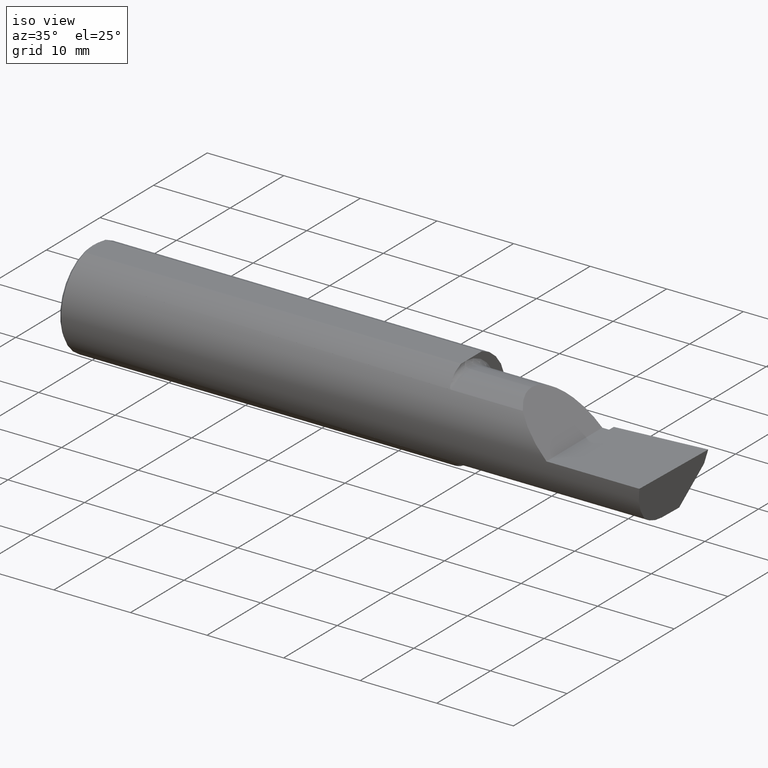
[diagram: clean part render]
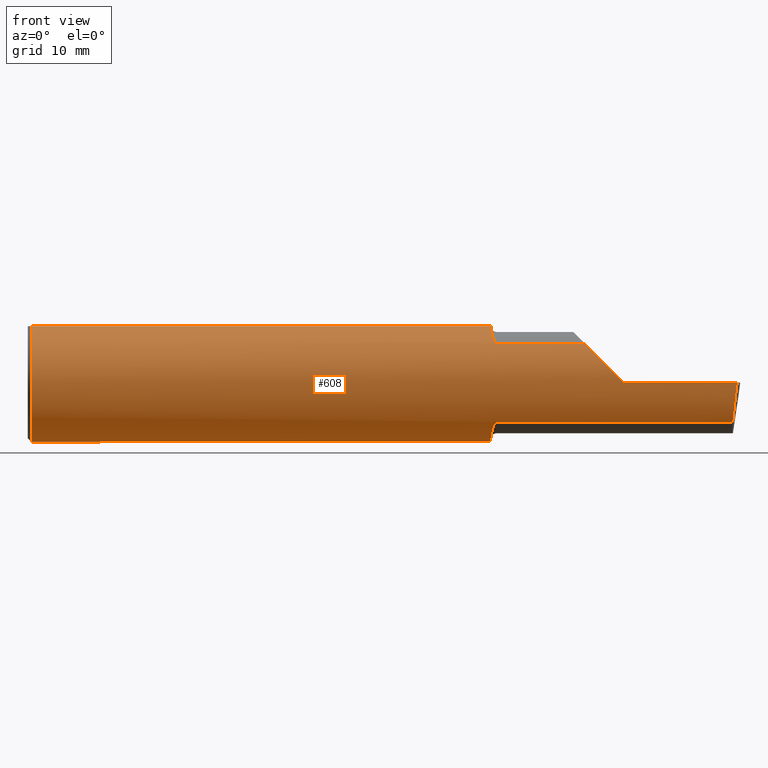
[diagram: tour spotlight — one face highlighted and labeled with its STEP entity id]
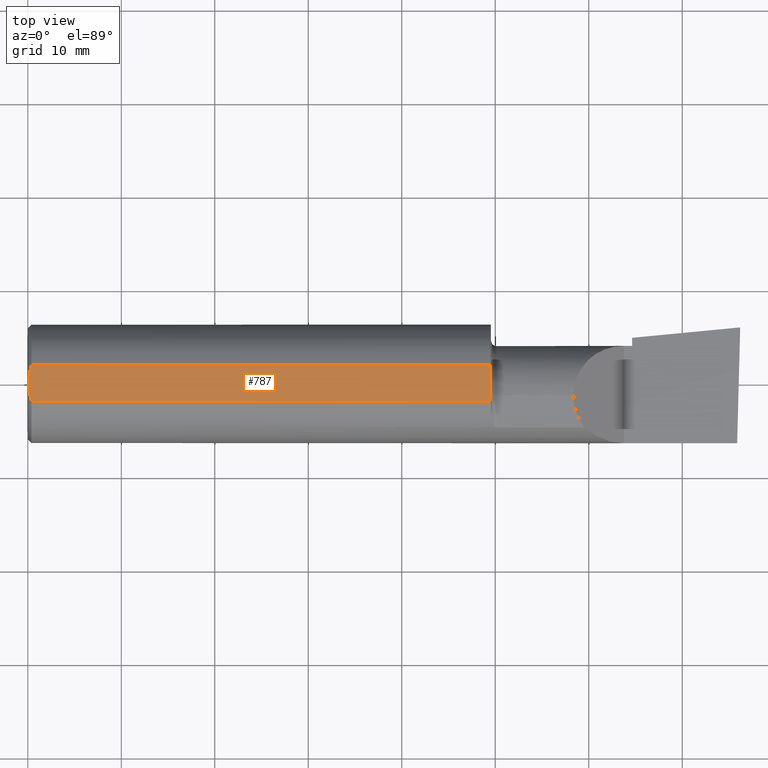
[diagram: tour spotlight — one face highlighted and labeled with its STEP entity id]
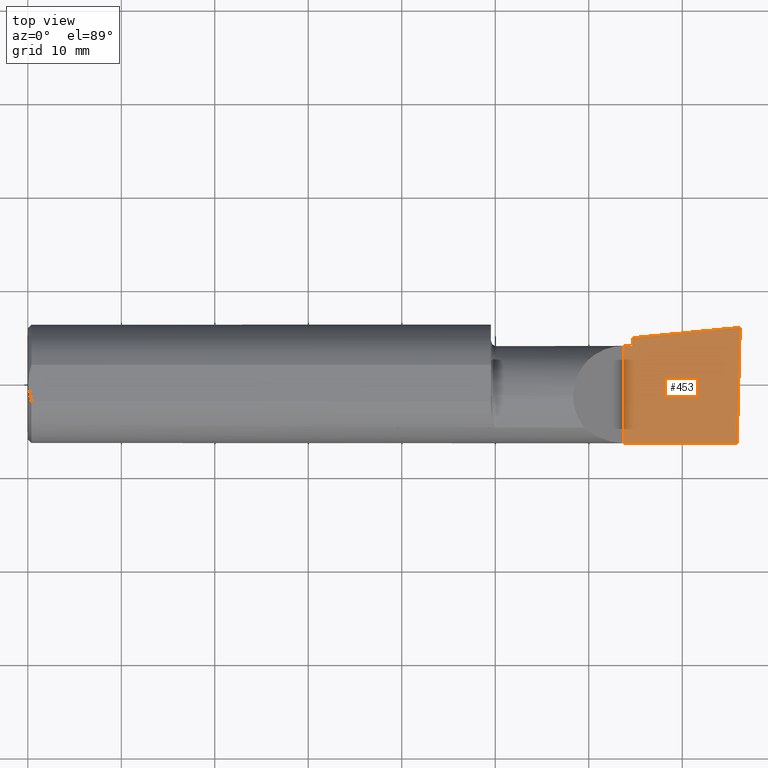
[diagram: tour spotlight — one face highlighted and labeled with its STEP entity id]
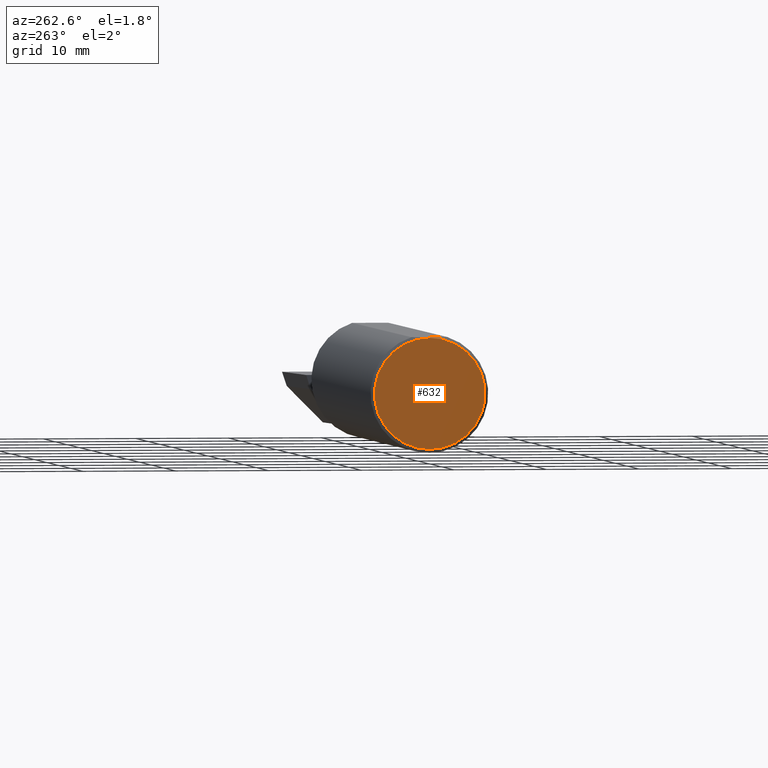
[diagram: tour spotlight — one face highlighted and labeled with its STEP entity id]
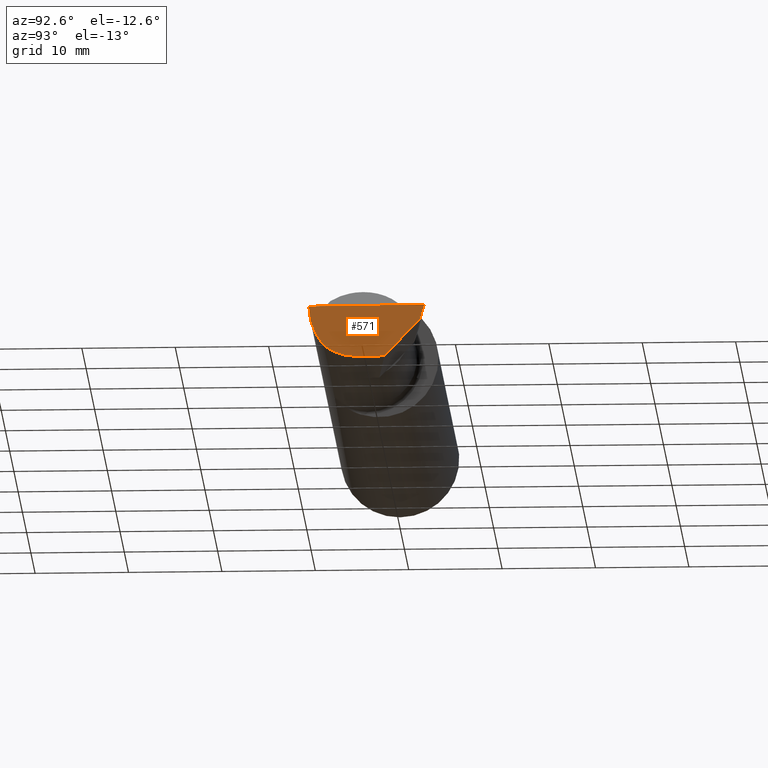
[diagram: tour spotlight — one face highlighted and labeled with its STEP entity id]
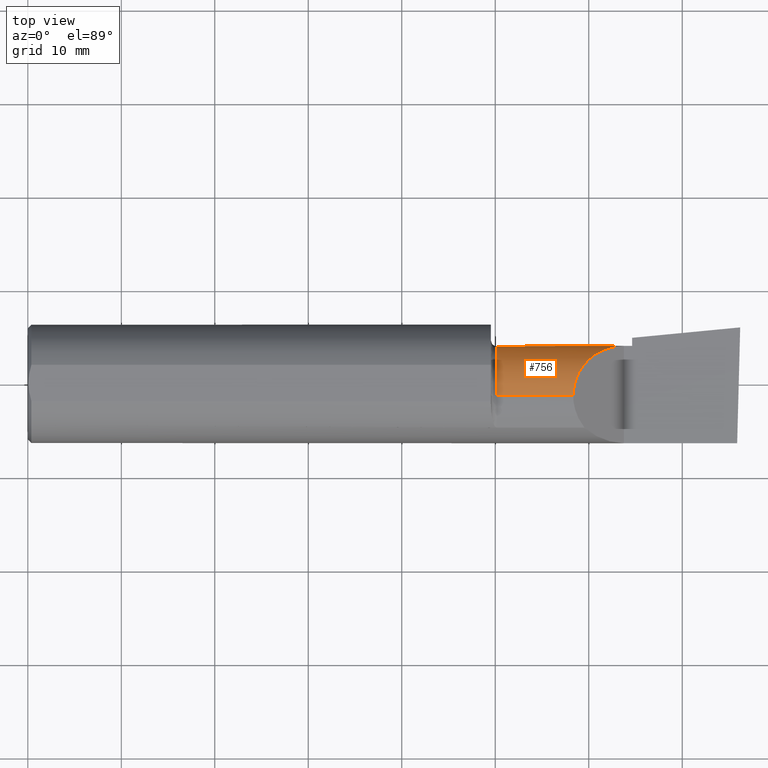
[diagram: tour spotlight — one face highlighted and labeled with its STEP entity id]
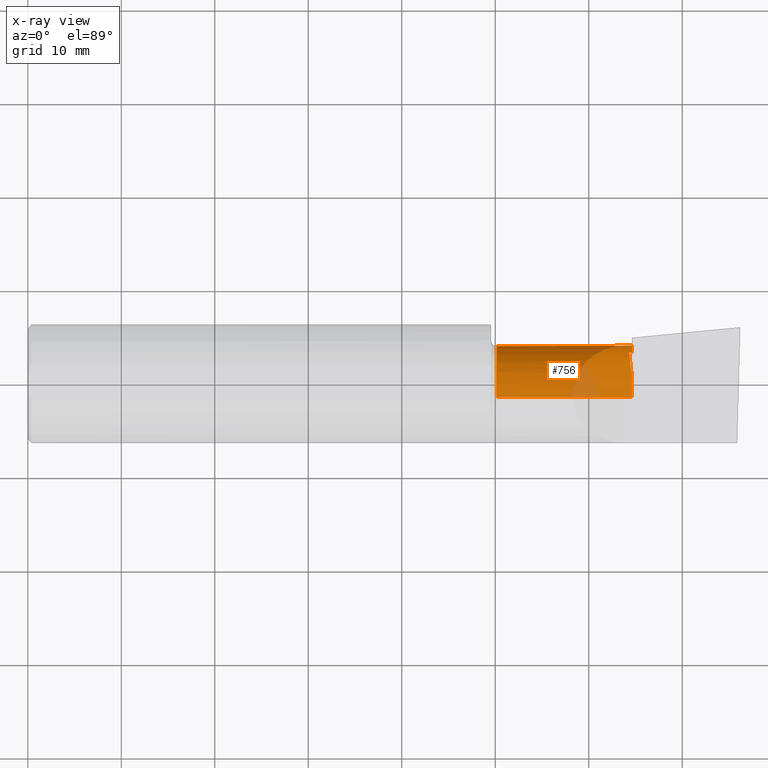
[diagram: x-ray of the same camera — body ghosted, this tour face saturated]
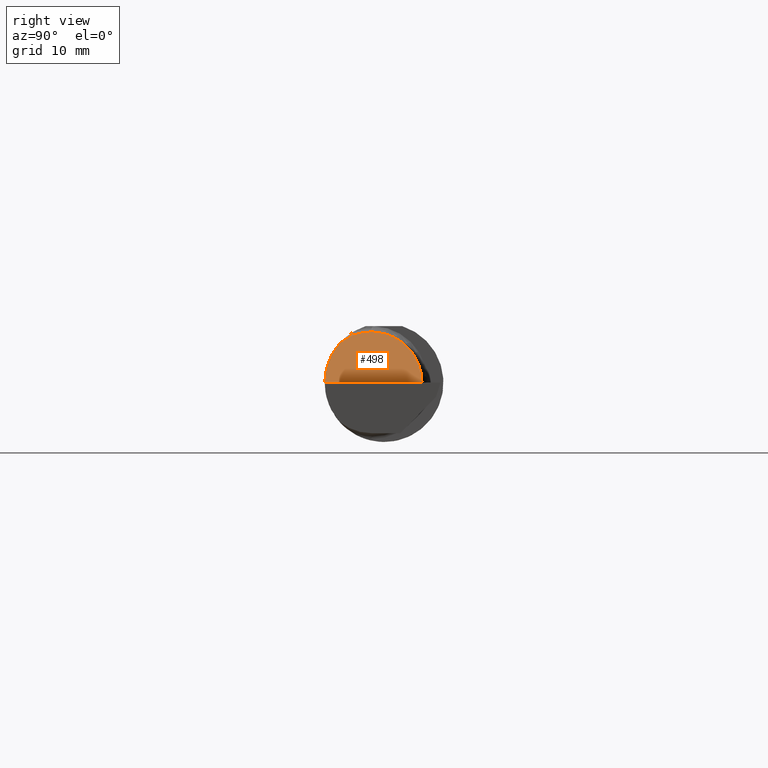
[diagram: tour spotlight — one face highlighted and labeled with its STEP entity id]
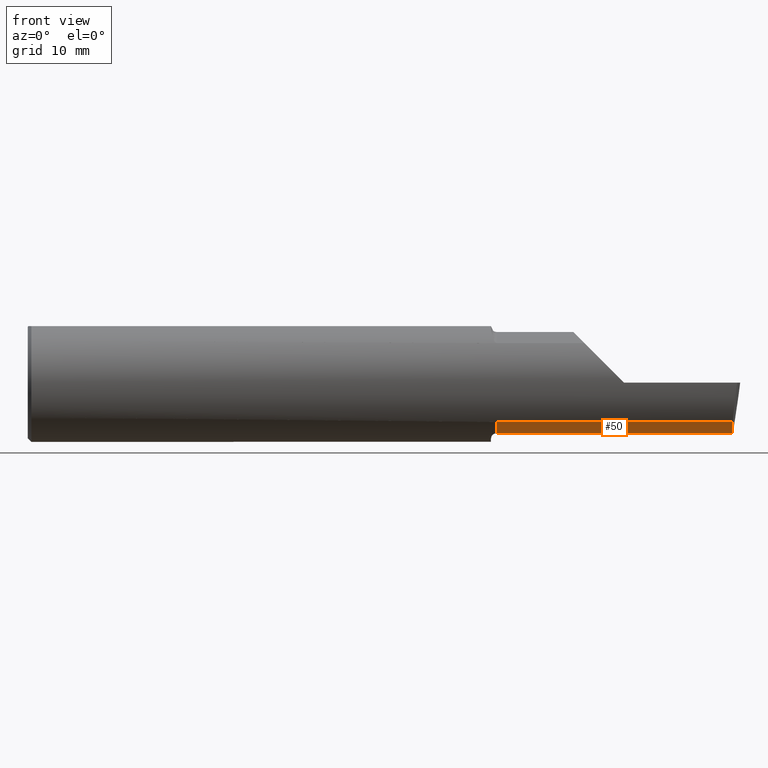
[diagram: tour spotlight — one face highlighted and labeled with its STEP entity id]
A machine part: a face-by-face anatomy tour. The part has 22 B-rep faces; the first image is the clean iso view, then the 8 largest visible faces are spotlighted one at a time (largest first), each with its STEP entity span.

Face 1 — front view, entity #608. In plain terms, the highlighted cylindrical surface (partial cylindrical patch) has radius 6.3462 mm, axis along (-1, -0, -0).
Definition (entity closure, byte-faithful):
#5 = DIRECTION ( 'NONE',  ( 0.000000000000000000, 0.000000000000000000, -1.000000000000000000 ) ) ;
#7 = ORIENTED_EDGE ( 'NONE', *, *, #42, .F. ) ;
#8 = VECTOR ( 'NONE', #752, 39.37007874015748143 ) ;
#9 = EDGE_CURVE ( 'NONE', #589, #634, #36, .T. ) ;
#16 = CARTESIAN_POINT ( 'NONE',  ( 1.951680550596499808, -0.1214972057705729636, 0.2186080375779522744 ) ) ;
#26 = DIRECTION ( 'NONE',  ( 0.000000000000000000, 0.000000000000000000, 1.000000000000000000 ) ) ;
#29 = CARTESIAN_POINT ( 'NONE',  ( 0.01499999999999999771, 0.000000000000000000, -0.2498499999999999888 ) ) ;
#36 = B_SPLINE_CURVE_WITH_KNOTS ( 'NONE', 3,
 ( #568, #385, #623, #16, #461, #695, #152, #772, #712, #101, #173, #37, #778, #154, #408, #477 ),
 .UNSPECIFIED., .F., .F.,
 ( 4, 2, 2, 2, 2, 2, 2, 4 ),
 ( 0.0001034694911878118951, 0.0009591263138367389640, 0.001814783136485666019, 0.002670439959134593075, 0.003098268370459053133, 0.003312182576121286848, 0.003419139678952397635, 0.003526096781783507987 ),
 .UNSPECIFIED. ) ;
#37 = CARTESIAN_POINT ( 'NONE',  ( 1.969290397284158445, -0.1841927918507048623, 0.1688179232533559004 ) ) ;
#40 = CARTESIAN_POINT ( 'NONE',  ( 2.968492717492763777, -0.1868028301886794917, -0.1659208399614086338 ) ) ;
#42 = EDGE_CURVE ( 'NONE', #722, #557, #378, .T. ) ;
#43 = CARTESIAN_POINT ( 'NONE',  ( 1.950000000000000178, -0.08036415094339657839, -0.2365726648265749632 ) ) ;
#45 = CARTESIAN_POINT ( 'NONE',  ( 0.000000000000000000, 0.000000000000000000, 0.000000000000000000 ) ) ;
#49 = ORIENTED_EDGE ( 'NONE', *, *, #299, .F. ) ;
#54 = ORIENTED_EDGE ( 'NONE', *, *, #81, .T. ) ;
#56 = CARTESIAN_POINT ( 'NONE',  ( 1.970138573936400350, -0.1849738682364327758, -0.1679602226613255145 ) ) ;
#59 = CARTESIAN_POINT ( 'NONE',  ( 1.969285582744839225, -0.1841881072713806022, -0.1688230283719353020 ) ) ;
#76 = VERTEX_POINT ( 'NONE', #697 ) ;
#81 = EDGE_CURVE ( 'NONE', #504, #773, #204, .T. ) ;
#88 = EDGE_LOOP ( 'NONE', ( #363, #54, #615, #618, #327, #469, #767, #611, #49, #7, #215, #457, #98 ) ) ;
#89 = VECTOR ( 'NONE', #269, 39.37007874015748143 ) ;
#91 = AXIS2_PLACEMENT_3D ( 'NONE', #45, #714, #430 ) ;
#97 = CARTESIAN_POINT ( 'NONE',  ( 2.973097331270539989, -0.2278791102234774546, -0.1196748990301325227 ) ) ;
#98 = ORIENTED_EDGE ( 'NONE', *, *, #220, .F. ) ;
#101 = CARTESIAN_POINT ( 'NONE',  ( 1.965857071685141566, -0.1799228808997977436, 0.1733778622677450698 ) ) ;
#105 = CIRCLE ( 'NONE', #265, 0.2498499999999999888 ) ;
#122 = CARTESIAN_POINT ( 'NONE',  ( 1.949999999999989964, -0.1016924291521888873, -0.2293274111511740820 ) ) ;
#133 = CARTESIAN_POINT ( 'NONE',  ( 2.510000000000000231, -0.2498499999999999610, 6.000769315822035917E-17 ) ) ;
#135 = DIRECTION ( 'NONE',  ( 1.000000000000000000, 0.000000000000000000, 0.000000000000000000 ) ) ;
#140 = CARTESIAN_POINT ( 'NONE',  ( 2.344079160038586185, -0.1868028301886760500, 0.1659208399614119644 ) ) ;
#144 = VECTOR ( 'NONE', #642, 39.37007874015748143 ) ;
#145 = CARTESIAN_POINT ( 'NONE',  ( 1.950000000000000178, 0.000000000000000000, 0.000000000000000000 ) ) ;
#152 = CARTESIAN_POINT ( 'NONE',  ( 1.957343635746627397, -0.1582230848692695313, 0.1936715022401950537 ) ) ;
#154 = CARTESIAN_POINT ( 'NONE',  ( 1.972243150415551538, -0.1862809296394745129, 0.1665094106511991190 ) ) ;
#161 = CARTESIAN_POINT ( 'NONE',  ( 0.01499999999999999771, 0.000000000000000000, 0.000000000000000000 ) ) ;
#167 = VERTEX_POINT ( 'NONE', #424 ) ;
#173 = CARTESIAN_POINT ( 'NONE',  ( 1.967018584423772198, -0.1817363555988614765, 0.1714722504633805766 ) ) ;
#204 =( BOUNDED_CURVE ( )  B_SPLINE_CURVE ( 3, ( #40, #97, #342, #297 ),
 .UNSPECIFIED., .F., .T. ) 
 B_SPLINE_CURVE_WITH_KNOTS ( ( 4, 4 ),
 ( 0.6344818218799018750, 1.360746882514782818 ),
 .UNSPECIFIED. ) 
 CURVE ( )  GEOMETRIC_REPRESENTATION_ITEM ( )  RATIONAL_B_SPLINE_CURVE ( ( 1.000000000000000000, 0.9565258159410998662, 0.9565258159410998662, 1.000000000000000000 ) ) 
 REPRESENTATION_ITEM ( '' )  );
#205 = CARTESIAN_POINT ( 'NONE',  ( 1.950000000000000178, 0.07650098038587503646, 0.2378500000000000059 ) ) ;
#207 = CARTESIAN_POINT ( 'NONE',  ( 2.344079160038586185, -0.1868028301886760500, 0.1659208399614119644 ) ) ;
#215 = ORIENTED_EDGE ( 'NONE', *, *, #370, .T. ) ;
#220 = EDGE_CURVE ( 'NONE', #76, #654, #503, .T. ) ;
#222 = EDGE_CURVE ( 'NONE', #654, #348, #573, .T. ) ;
#230 = DIRECTION ( 'NONE',  ( -1.000000000000000000, -0.000000000000000000, -0.000000000000000000 ) ) ;
#240 = AXIS2_PLACEMENT_3D ( 'NONE', #492, #672, #728 ) ;
#250 = CARTESIAN_POINT ( 'NONE',  ( 1.975000000000000089, -0.1868028301886792697, 0.1659208399614088003 ) ) ;
#259 = CARTESIAN_POINT ( 'NONE',  ( 1.975000000000000089, -0.1868028301886792142, -0.1659208399614088281 ) ) ;
#265 = AXIS2_PLACEMENT_3D ( 'NONE', #564, #622, #625 ) ;
#269 = DIRECTION ( 'NONE',  ( -1.000000000000000000, -0.000000000000000000, -0.000000000000000000 ) ) ;
#271 = EDGE_CURVE ( 'NONE', #289, #389, #423, .T. ) ;
#273 = LINE ( 'NONE', #690, #303 ) ;
#289 = VERTEX_POINT ( 'NONE', #446 ) ;
#297 = CARTESIAN_POINT ( 'NONE',  ( 2.987221270274237561, -0.2498499999999999888, -6.495017623931042258E-17 ) ) ;
#299 = EDGE_CURVE ( 'NONE', #557, #509, #105, .T. ) ;
#303 = VECTOR ( 'NONE', #335, 39.37007874015748143 ) ;
#313 = CARTESIAN_POINT ( 'NONE',  ( 1.965875558094660525, -0.1799506819598037100, -0.1733486322212183239 ) ) ;
#317 = CARTESIAN_POINT ( 'NONE',  ( 1.961285743882607902, -0.1704402150608113897, -0.1827701868778698890 ) ) ;
#320 = LINE ( 'NONE', #517, #89 ) ;
#327 = ORIENTED_EDGE ( 'NONE', *, *, #478, .F. ) ;
#328 = AXIS2_PLACEMENT_3D ( 'NONE', #145, #135, #5 ) ;
#334 = EDGE_CURVE ( 'NONE', #167, #509, #320, .T. ) ;
#335 = DIRECTION ( 'NONE',  ( -1.000000000000000000, -0.000000000000000000, -0.000000000000000000 ) ) ;
#342 = CARTESIAN_POINT ( 'NONE',  ( 2.979623920331825548, -0.2498499999999999610, -0.06185424669427498634 ) ) ;
#348 = VERTEX_POINT ( 'NONE', #205 ) ;
#361 = CARTESIAN_POINT ( 'NONE',  ( 1.973547768521295209, -0.1868028301886792142, -0.1659208399614089668 ) ) ;
#362 = EDGE_CURVE ( 'NONE', #504, #76, #273, .T. ) ;
#363 = ORIENTED_EDGE ( 'NONE', *, *, #362, .F. ) ;
#370 = EDGE_CURVE ( 'NONE', #722, #348, #758, .T. ) ;
#371 = CARTESIAN_POINT ( 'NONE',  ( 1.967016733372314974, -0.1817333077058766733, -0.1714754572696067236 ) ) ;
#373 = DIRECTION ( 'NONE',  ( -1.000000000000000000, -0.000000000000000000, -0.000000000000000000 ) ) ;
#378 = CIRCLE ( 'NONE', #730, 0.2498499999999999888 ) ;
#385 = CARTESIAN_POINT ( 'NONE',  ( 1.949999999999999734, -0.09104204635388178646, 0.2329453649474654831 ) ) ;
#386 = CARTESIAN_POINT ( 'NONE',  ( 2.987221270274237561, -0.2498499999999999888, -6.495017623931042258E-17 ) ) ;
#387 = CARTESIAN_POINT ( 'NONE',  ( 2.448145753305722927, -0.2498500000000000165, 0.06185424669427665861 ) ) ;
#389 = VERTEX_POINT ( 'NONE', #207 ) ;
#408 = CARTESIAN_POINT ( 'NONE',  ( 1.973548866468136431, -0.1868028301907320721, 0.1659208399590979544 ) ) ;
#411 = LINE ( 'NONE', #633, #144 ) ;
#419 = CARTESIAN_POINT ( 'NONE',  ( 1.950000000000000178, -0.08036415094339657839, -0.2365726648265749632 ) ) ;
#422 = CYLINDRICAL_SURFACE ( 'NONE', #91, 0.2498499999999999888 ) ;
#423 =( BOUNDED_CURVE ( )  B_SPLINE_CURVE ( 3, ( #133, #387, #628, #140 ),
 .UNSPECIFIED., .F., .T. ) 
 B_SPLINE_CURVE_WITH_KNOTS ( ( 4, 4 ),
 ( 4.712388980384689674, 5.438654041019590935 ),
 .UNSPECIFIED. ) 
 CURVE ( )  GEOMETRIC_REPRESENTATION_ITEM ( )  RATIONAL_B_SPLINE_CURVE ( ( 1.000000000000000000, 0.9565258159410974237, 0.9565258159410974237, 1.000000000000000000 ) ) 
 REPRESENTATION_ITEM ( '' )  );
#424 = CARTESIAN_POINT ( 'NONE',  ( 1.950000000000000178, -0.07650098038590473493, 0.2378500000000000059 ) ) ;
#430 = DIRECTION ( 'NONE',  ( 0.000000000000000000, 0.000000000000000000, 1.000000000000000000 ) ) ;
#446 = CARTESIAN_POINT ( 'NONE',  ( 2.510000000000000231, -0.2498499999999999610, 6.000769315822035917E-17 ) ) ;
#457 = ORIENTED_EDGE ( 'NONE', *, *, #222, .F. ) ;
#461 = CARTESIAN_POINT ( 'NONE',  ( 1.952700302592143000, -0.1312404656039925233, 0.2128935242986065290 ) ) ;
#469 = ORIENTED_EDGE ( 'NONE', *, *, #9, .F. ) ;
#470 = VECTOR ( 'NONE', #373, 39.37007874015748143 ) ;
#477 = CARTESIAN_POINT ( 'NONE',  ( 1.975000000000000089, -0.1868028301886792697, 0.1659208399614088003 ) ) ;
#478 = EDGE_CURVE ( 'NONE', #634, #389, #411, .T. ) ;
#491 = CARTESIAN_POINT ( 'NONE',  ( 1.950000000000000178, -0.08036415094339657839, 0.2365726648265749632 ) ) ;
#492 = CARTESIAN_POINT ( 'NONE',  ( 1.950000000000000178, 0.000000000000000000, 0.000000000000000000 ) ) ;
#502 = CARTESIAN_POINT ( 'NONE',  ( 0.000000000000000000, 0.07650098038587500870, 0.2378499999999999226 ) ) ;
#503 = B_SPLINE_CURVE_WITH_KNOTS ( 'NONE', 3,
 ( #259, #361, #597, #56, #59, #371, #313, #610, #317, #545, #797, #603, #122, #43 ),
 .UNSPECIFIED., .F., .F.,
 ( 4, 2, 2, 2, 2, 2, 4 ),
 ( 1.967619685288262155E-07, 0.0001090840123077882126, 0.0002179712626470476017, 0.0004357457633255774660, 0.0008712947646826388207, 0.001742392767396764783, 0.003484588772825013454 ),
 .UNSPECIFIED. ) ;
#504 = VERTEX_POINT ( 'NONE', #761 ) ;
#509 = VERTEX_POINT ( 'NONE', #648 ) ;
#517 = CARTESIAN_POINT ( 'NONE',  ( 0.000000000000000000, -0.07650098038587496707, 0.2378499999999999226 ) ) ;
#545 = CARTESIAN_POINT ( 'NONE',  ( 1.957341173198634321, -0.1582250006961555822, -0.1936724403215129287 ) ) ;
#557 = VERTEX_POINT ( 'NONE', #29 ) ;
#564 = CARTESIAN_POINT ( 'NONE',  ( 0.01499999999999999771, 0.000000000000000000, 0.000000000000000000 ) ) ;
#568 = CARTESIAN_POINT ( 'NONE',  ( 1.950000000000000178, -0.08036415094339657839, 0.2365726648265749632 ) ) ;
#573 = CIRCLE ( 'NONE', #240, 0.2498499999999999888 ) ;
#578 = EDGE_CURVE ( 'NONE', #773, #289, #605, .T. ) ;
#589 = VERTEX_POINT ( 'NONE', #491 ) ;
#593 = CARTESIAN_POINT ( 'NONE',  ( 1.878049121262586821E-31, -0.2498499999999999610, 7.172378389328440442E-16 ) ) ;
#597 = CARTESIAN_POINT ( 'NONE',  ( 1.972232603162240805, -0.1862758070845873248, -0.1665151405181428124 ) ) ;
#603 = CARTESIAN_POINT ( 'NONE',  ( 1.951227564404961479, -0.1217005943024290909, -0.2193523119135139532 ) ) ;
#605 = LINE ( 'NONE', #593, #470 ) ;
#608 = ADVANCED_FACE ( 'NONE', ( #658 ), #422, .T. ) ;
#610 = CARTESIAN_POINT ( 'NONE',  ( 1.962797058507745884, -0.1743943839926585249, -0.1789958554125700707 ) ) ;
#611 = ORIENTED_EDGE ( 'NONE', *, *, #334, .T. ) ;
#615 = ORIENTED_EDGE ( 'NONE', *, *, #578, .T. ) ;
#618 = ORIENTED_EDGE ( 'NONE', *, *, #271, .T. ) ;
#622 = DIRECTION ( 'NONE',  ( -1.000000000000000000, -0.000000000000000000, -0.000000000000000000 ) ) ;
#623 = CARTESIAN_POINT ( 'NONE',  ( 1.950332084145229850, -0.1014027185340446724, 0.2286231260779312824 ) ) ;
#625 = DIRECTION ( 'NONE',  ( 0.000000000000000000, 0.000000000000000000, 1.000000000000000000 ) ) ;
#628 = CARTESIAN_POINT ( 'NONE',  ( 2.390325100969863392, -0.2278791102234763166, 0.1196748990301357285 ) ) ;
#633 = CARTESIAN_POINT ( 'NONE',  ( 2.260000000000000231, -0.1868028301886794917, 0.1659208399614086338 ) ) ;
#634 = VERTEX_POINT ( 'NONE', #250 ) ;
#642 = DIRECTION ( 'NONE',  ( 1.000000000000000000, 0.000000000000000000, 0.000000000000000000 ) ) ;
#648 = CARTESIAN_POINT ( 'NONE',  ( 0.01499999999998188026, -0.07650098038590467941, 0.2378500000000000059 ) ) ;
#654 = VERTEX_POINT ( 'NONE', #419 ) ;
#658 = FACE_OUTER_BOUND ( 'NONE', #88, .T. ) ;
#665 = CIRCLE ( 'NONE', #328, 0.2498499999999999888 ) ;
#672 = DIRECTION ( 'NONE',  ( 1.000000000000000000, 0.000000000000000000, 0.000000000000000000 ) ) ;
#690 = CARTESIAN_POINT ( 'NONE',  ( 2.260000000000000231, -0.1868028301886794917, -0.1659208399614086338 ) ) ;
#695 = CARTESIAN_POINT ( 'NONE',  ( 1.955553274544309827, -0.1495649063853947414, 0.2004446339470384031 ) ) ;
#697 = CARTESIAN_POINT ( 'NONE',  ( 1.975000000000000089, -0.1868028301886792142, -0.1659208399614088281 ) ) ;
#712 = CARTESIAN_POINT ( 'NONE',  ( 1.962758562425230169, -0.1743135686468865464, 0.1790760091940043208 ) ) ;
#714 = DIRECTION ( 'NONE',  ( -1.000000000000000000, -0.000000000000000000, -0.000000000000000000 ) ) ;
#716 = EDGE_CURVE ( 'NONE', #167, #589, #665, .T. ) ;
#722 = VERTEX_POINT ( 'NONE', #736 ) ;
#728 = DIRECTION ( 'NONE',  ( 0.000000000000000000, 0.000000000000000000, -1.000000000000000000 ) ) ;
#730 = AXIS2_PLACEMENT_3D ( 'NONE', #161, #230, #26 ) ;
#736 = CARTESIAN_POINT ( 'NONE',  ( 0.01499999999999999771, 0.07650098038587500870, 0.2378499999999999226 ) ) ;
#752 = DIRECTION ( 'NONE',  ( 1.000000000000000000, 0.000000000000000000, 0.000000000000000000 ) ) ;
#758 = LINE ( 'NONE', #502, #8 ) ;
#761 = CARTESIAN_POINT ( 'NONE',  ( 2.968492717492763777, -0.1868028301886794917, -0.1659208399614086338 ) ) ;
#767 = ORIENTED_EDGE ( 'NONE', *, *, #716, .F. ) ;
#772 = CARTESIAN_POINT ( 'NONE',  ( 1.961268146151109892, -0.1703904609315277929, 0.1828159088808246902 ) ) ;
#773 = VERTEX_POINT ( 'NONE', #386 ) ;
#778 = CARTESIAN_POINT ( 'NONE',  ( 1.970144309637441138, -0.1849788583324330216, 0.1679547276881069862 ) ) ;
#797 = CARTESIAN_POINT ( 'NONE',  ( 1.955537042546467541, -0.1495003888704983797, -0.2004994225712675993 ) ) ;

Face 2 — top view, entity #787. In plain terms, the highlighted planar face has unit normal (0, -0, -1).
Definition (entity closure, byte-faithful):
#1 = ORIENTED_EDGE ( 'NONE', *, *, #66, .F. ) ;
#8 = VECTOR ( 'NONE', #752, 39.37007874015748143 ) ;
#63 = CARTESIAN_POINT ( 'NONE',  ( 3.000000000000000444, 0.2998500000000000609, 0.2378499999999999504 ) ) ;
#66 = EDGE_CURVE ( 'NONE', #421, #722, #677, .T. ) ;
#67 = ORIENTED_EDGE ( 'NONE', *, *, #334, .F. ) ;
#69 = EDGE_CURVE ( 'NONE', #237, #546, #218, .T. ) ;
#75 = CARTESIAN_POINT ( 'NONE',  ( 1.950000900032402340, -0.05299999999999998462, 0.2378500000000221548 ) ) ;
#89 = VECTOR ( 'NONE', #269, 39.37007874015748143 ) ;
#93 = CARTESIAN_POINT ( 'NONE',  ( 0.008199648822849016708, 0.05156445313451110679, 0.2378500000000000059 ) ) ;
#112 = CARTESIAN_POINT ( 'NONE',  ( 1.950000000000000178, -0.06494989539703015236, 0.2378500000000000059 ) ) ;
#117 = CARTESIAN_POINT ( 'NONE',  ( 1.950000000000000178, -0.04105010460296977526, 0.2378500000000000059 ) ) ;
#127 = ORIENTED_EDGE ( 'NONE', *, *, #314, .F. ) ;
#138 = EDGE_CURVE ( 'NONE', #657, #167, #489, .T. ) ;
#158 = AXIS2_PLACEMENT_3D ( 'NONE', #63, #505, #319 ) ;
#167 = VERTEX_POINT ( 'NONE', #424 ) ;
#180 = B_SPLINE_CURVE_WITH_KNOTS ( 'NONE', 3,
 ( #75, #331, #569, #749 ),
 .UNSPECIFIED., .F., .F.,
 ( 4, 4 ),
 ( 0.4999999999997256084, 1.000000000000000000 ),
 .UNSPECIFIED. ) ;
#186 = CARTESIAN_POINT ( 'NONE',  ( 0.003000000000000035624, 4.000211044293764417E-17, 0.2378500000000000059 ) ) ;
#187 = DIRECTION ( 'NONE',  ( 0.000000000000000000, -1.000000000000000000, 1.138839417068644240E-16 ) ) ;
#205 = CARTESIAN_POINT ( 'NONE',  ( 1.950000000000000178, 0.07650098038587503646, 0.2378500000000000059 ) ) ;
#218 = B_SPLINE_CURVE_WITH_KNOTS ( 'NONE', 3,
 ( #482, #355, #347, #591 ),
 .UNSPECIFIED., .F., .F.,
 ( 4, 4 ),
 ( 0.000000000000000000, 0.4999999999997256084 ),
 .UNSPECIFIED. ) ;
#234 = CARTESIAN_POINT ( 'NONE',  ( 0.004092330037930667214, 0.02606142970188504368, 0.2378500000000000059 ) ) ;
#237 = VERTEX_POINT ( 'NONE', #117 ) ;
#246 = CARTESIAN_POINT ( 'NONE',  ( 0.01499999999998188026, -0.07650098038590467941, 0.2378500000000000059 ) ) ;
#269 = DIRECTION ( 'NONE',  ( -1.000000000000000000, -0.000000000000000000, -0.000000000000000000 ) ) ;
#314 = EDGE_CURVE ( 'NONE', #546, #657, #180, .T. ) ;
#316 = LINE ( 'NONE', #550, #428 ) ;
#319 = DIRECTION ( 'NONE',  ( 0.000000000000000000, 1.000000000000000000, -1.138839417068644240E-16 ) ) ;
#320 = LINE ( 'NONE', #517, #89 ) ;
#321 = ORIENTED_EDGE ( 'NONE', *, *, #69, .F. ) ;
#331 = CARTESIAN_POINT ( 'NONE',  ( 1.950001800093990711, -0.05698398688203978879, 0.2378499975680403167 ) ) ;
#334 = EDGE_CURVE ( 'NONE', #167, #509, #320, .T. ) ;
#347 = CARTESIAN_POINT ( 'NONE',  ( 1.950001800035618071, -0.04901601311796455890, 0.2378500024320483464 ) ) ;
#348 = VERTEX_POINT ( 'NONE', #205 ) ;
#355 = CARTESIAN_POINT ( 'NONE',  ( 1.950000000000000178, -0.04503596074371225833, 0.2378500000000000059 ) ) ;
#358 = CARTESIAN_POINT ( 'NONE',  ( 0.01499999999999999771, 0.07650098038587500870, 0.2378499999999999226 ) ) ;
#370 = EDGE_CURVE ( 'NONE', #722, #348, #758, .T. ) ;
#376 = PLANE ( 'NONE',  #158 ) ;
#388 = VECTOR ( 'NONE', #187, 39.37007874015748143 ) ;
#406 = CARTESIAN_POINT ( 'NONE',  ( 1.950000900032402340, -0.05299999999999998462, 0.2378500000000221548 ) ) ;
#421 = VERTEX_POINT ( 'NONE', #617 ) ;
#424 = CARTESIAN_POINT ( 'NONE',  ( 1.950000000000000178, -0.07650098038590473493, 0.2378500000000000059 ) ) ;
#428 = VECTOR ( 'NONE', #547, 39.37007874015748143 ) ;
#432 = B_SPLINE_CURVE_WITH_KNOTS ( 'NONE', 3,
 ( #246, #609, #781, #485, #727, #186 ),
 .UNSPECIFIED., .F., .F.,
 ( 4, 2, 4 ),
 ( 0.002692677063605044066, 0.003672889278957895340, 0.004653101494310745746 ),
 .UNSPECIFIED. ) ;
#474 = ORIENTED_EDGE ( 'NONE', *, *, #370, .F. ) ;
#482 = CARTESIAN_POINT ( 'NONE',  ( 1.950000000000000178, -0.04105010460296977526, 0.2378500000000000059 ) ) ;
#483 = ORIENTED_EDGE ( 'NONE', *, *, #630, .F. ) ;
#485 = CARTESIAN_POINT ( 'NONE',  ( 0.004068542164723867871, -0.02585015905295367025, 0.2378500000000000059 ) ) ;
#489 = LINE ( 'NONE', #782, #388 ) ;
#497 = ORIENTED_EDGE ( 'NONE', *, *, #585, .F. ) ;
#502 = CARTESIAN_POINT ( 'NONE',  ( 0.000000000000000000, 0.07650098038587500870, 0.2378499999999999226 ) ) ;
#505 = DIRECTION ( 'NONE',  ( 0.000000000000000000, -1.138839417068644240E-16, -1.000000000000000000 ) ) ;
#509 = VERTEX_POINT ( 'NONE', #648 ) ;
#517 = CARTESIAN_POINT ( 'NONE',  ( 0.000000000000000000, -0.07650098038587496707, 0.2378499999999999226 ) ) ;
#546 = VERTEX_POINT ( 'NONE', #406 ) ;
#547 = DIRECTION ( 'NONE',  ( 0.000000000000000000, -1.000000000000000000, 1.138839417068644240E-16 ) ) ;
#550 = CARTESIAN_POINT ( 'NONE',  ( 1.950000000000000178, 0.2998500000000000609, 0.2378499999999999504 ) ) ;
#569 = CARTESIAN_POINT ( 'NONE',  ( 1.950000000000000178, -0.06096394231309280876, 0.2378500000000000059 ) ) ;
#585 = EDGE_CURVE ( 'NONE', #509, #421, #432, .T. ) ;
#591 = CARTESIAN_POINT ( 'NONE',  ( 1.950000900032402340, -0.05299999999999998462, 0.2378500000000221548 ) ) ;
#607 = EDGE_LOOP ( 'NONE', ( #483, #474, #1, #497, #67, #738, #127, #321 ) ) ;
#609 = CARTESIAN_POINT ( 'NONE',  ( 0.01120982745448973784, -0.06412238594540853320, 0.2378500000000000059 ) ) ;
#617 = CARTESIAN_POINT ( 'NONE',  ( 0.003000000000000035624, 4.000211044293764417E-17, 0.2378500000000000059 ) ) ;
#630 = EDGE_CURVE ( 'NONE', #348, #237, #316, .T. ) ;
#643 = CARTESIAN_POINT ( 'NONE',  ( 0.003000000000000035624, 4.000211044293764417E-17, 0.2378500000000000059 ) ) ;
#648 = CARTESIAN_POINT ( 'NONE',  ( 0.01499999999998188026, -0.07650098038590467941, 0.2378500000000000059 ) ) ;
#652 = CARTESIAN_POINT ( 'NONE',  ( 0.01120763235350242214, 0.06411521680875356677, 0.2378500000000000336 ) ) ;
#657 = VERTEX_POINT ( 'NONE', #112 ) ;
#677 = B_SPLINE_CURVE_WITH_KNOTS ( 'NONE', 3,
 ( #643, #776, #234, #93, #652, #358 ),
 .UNSPECIFIED., .F., .F.,
 ( 4, 2, 4 ),
 ( 0.004653101494310745746, 0.005634627094920352519, 0.006616152695529959292 ),
 .UNSPECIFIED. ) ;
#722 = VERTEX_POINT ( 'NONE', #736 ) ;
#727 = CARTESIAN_POINT ( 'NONE',  ( 0.003000000000000061211, -0.01298133447204027208, 0.2378500000000000614 ) ) ;
#736 = CARTESIAN_POINT ( 'NONE',  ( 0.01499999999999999771, 0.07650098038587500870, 0.2378499999999999226 ) ) ;
#738 = ORIENTED_EDGE ( 'NONE', *, *, #138, .F. ) ;
#749 = CARTESIAN_POINT ( 'NONE',  ( 1.950000000000000178, -0.06494989539703015236, 0.2378500000000000059 ) ) ;
#751 = FACE_OUTER_BOUND ( 'NONE', #607, .T. ) ;
#752 = DIRECTION ( 'NONE',  ( 1.000000000000000000, 0.000000000000000000, 0.000000000000000000 ) ) ;
#758 = LINE ( 'NONE', #502, #8 ) ;
#776 = CARTESIAN_POINT ( 'NONE',  ( 0.003000000000000063380, 0.01299872814765626154, 0.2378499999999999226 ) ) ;
#781 = CARTESIAN_POINT ( 'NONE',  ( 0.008160184410935168720, -0.05138200716576601240, 0.2378500000000000614 ) ) ;
#782 = CARTESIAN_POINT ( 'NONE',  ( 1.950000000000000178, 0.2998500000000000609, 0.2378499999999999504 ) ) ;
#787 = ADVANCED_FACE ( 'NONE', ( #751 ), #376, .F. ) ;

Face 3 — top view, entity #453. In plain terms, the highlighted planar face has unit normal (-0, 0, -1).
Definition (entity closure, byte-faithful):
#14 = EDGE_CURVE ( 'NONE', #57, #413, #523, .T. ) ;
#19 = ORIENTED_EDGE ( 'NONE', *, *, #531, .F. ) ;
#22 = FACE_OUTER_BOUND ( 'NONE', #170, .T. ) ;
#57 = VERTEX_POINT ( 'NONE', #169 ) ;
#77 = AXIS2_PLACEMENT_3D ( 'NONE', #153, #228, #765 ) ;
#148 = LINE ( 'NONE', #512, #540 ) ;
#153 = CARTESIAN_POINT ( 'NONE',  ( 3.000000000000000444, -0.2500000000000000555, -6.829619984160658046E-17 ) ) ;
#169 = CARTESIAN_POINT ( 'NONE',  ( 2.545000000000000373, 0.1943384830701264387, 7.172377113401736184E-16 ) ) ;
#170 = EDGE_LOOP ( 'NONE', ( #372, #206, #687, #746, #595, #19 ) ) ;
#183 = VECTOR ( 'NONE', #466, 39.37007874015748143 ) ;
#194 = DIRECTION ( 'NONE',  ( 0.000000000000000000, 1.000000000000000000, 0.000000000000000000 ) ) ;
#206 = ORIENTED_EDGE ( 'NONE', *, *, #452, .T. ) ;
#219 = LINE ( 'NONE', #346, #565 ) ;
#228 = DIRECTION ( 'NONE',  ( -2.618446795914836237E-16, 0.000000000000000000, -1.000000000000000000 ) ) ;
#233 = DIRECTION ( 'NONE',  ( 0.02617694830786375729, 0.9996573249755575929, -6.752493720234686897E-18 ) ) ;
#289 = VERTEX_POINT ( 'NONE', #446 ) ;
#296 = CARTESIAN_POINT ( 'NONE',  ( 2.987226101480004559, -0.2496655036952227791, -6.495142247650418772E-17 ) ) ;
#338 = LINE ( 'NONE', #296, #770 ) ;
#343 = EDGE_CURVE ( 'NONE', #668, #698, #148, .T. ) ;
#346 = CARTESIAN_POINT ( 'NONE',  ( 2.510000000000000231, -0.2500000000000000555, 6.000769315822035917E-17 ) ) ;
#372 = ORIENTED_EDGE ( 'NONE', *, *, #578, .F. ) ;
#373 = DIRECTION ( 'NONE',  ( -1.000000000000000000, -0.000000000000000000, -0.000000000000000000 ) ) ;
#386 = CARTESIAN_POINT ( 'NONE',  ( 2.987221270274237561, -0.2498499999999999888, -6.495017623931042258E-17 ) ) ;
#391 = EDGE_CURVE ( 'NONE', #698, #57, #694, .T. ) ;
#392 = CARTESIAN_POINT ( 'NONE',  ( 2.545000000000000373, 0.1601499999999999591, 7.172378389328441428E-16 ) ) ;
#393 = CARTESIAN_POINT ( 'NONE',  ( 3.000000000000013767, 0.2381500000000412454, 1.300530385483793285E-13 ) ) ;
#413 = VERTEX_POINT ( 'NONE', #393 ) ;
#446 = CARTESIAN_POINT ( 'NONE',  ( 2.510000000000000231, -0.2498499999999999610, 6.000769315822035917E-17 ) ) ;
#452 = EDGE_CURVE ( 'NONE', #773, #413, #338, .T. ) ;
#453 = ADVANCED_FACE ( 'NONE', ( #22 ), #769, .F. ) ;
#460 = CARTESIAN_POINT ( 'NONE',  ( 2.545000000000000373, -0.2500000000000000555, 5.084312937251844195E-17 ) ) ;
#466 = DIRECTION ( 'NONE',  ( 0.9953961983671787417, 0.09584575252022459191, -2.606391986280347847E-16 ) ) ;
#470 = VECTOR ( 'NONE', #373, 39.37007874015748143 ) ;
#512 = CARTESIAN_POINT ( 'NONE',  ( 1.878049121262586821E-31, 0.1601499999999999313, 7.172378389328440442E-16 ) ) ;
#523 = LINE ( 'NONE', #534, #183 ) ;
#531 = EDGE_CURVE ( 'NONE', #289, #668, #219, .T. ) ;
#534 = CARTESIAN_POINT ( 'NONE',  ( -0.02370835988220531057, -0.05299999999999998462, 7.234457468298397131E-16 ) ) ;
#540 = VECTOR ( 'NONE', #556, 39.37007874015748143 ) ;
#556 = DIRECTION ( 'NONE',  ( 1.000000000000000000, 0.000000000000000000, 0.000000000000000000 ) ) ;
#565 = VECTOR ( 'NONE', #586, 39.37007874015748143 ) ;
#578 = EDGE_CURVE ( 'NONE', #773, #289, #605, .T. ) ;
#586 = DIRECTION ( 'NONE',  ( -0.000000000000000000, 1.000000000000000000, -0.000000000000000000 ) ) ;
#593 = CARTESIAN_POINT ( 'NONE',  ( 1.878049121262586821E-31, -0.2498499999999999610, 7.172378389328440442E-16 ) ) ;
#595 = ORIENTED_EDGE ( 'NONE', *, *, #343, .F. ) ;
#605 = LINE ( 'NONE', #593, #470 ) ;
#624 = CARTESIAN_POINT ( 'NONE',  ( 2.510000000000000231, 0.1601499999999999035, 6.000769315822035917E-17 ) ) ;
#668 = VERTEX_POINT ( 'NONE', #624 ) ;
#687 = ORIENTED_EDGE ( 'NONE', *, *, #14, .F. ) ;
#694 = LINE ( 'NONE', #460, #742 ) ;
#698 = VERTEX_POINT ( 'NONE', #392 ) ;
#742 = VECTOR ( 'NONE', #194, 39.37007874015748143 ) ;
#746 = ORIENTED_EDGE ( 'NONE', *, *, #391, .F. ) ;
#765 = DIRECTION ( 'NONE',  ( -1.000000000000000000, 0.000000000000000000, 2.618446795914836237E-16 ) ) ;
#769 = PLANE ( 'NONE',  #77 ) ;
#770 = VECTOR ( 'NONE', #233, 39.37007874015748854 ) ;
#773 = VERTEX_POINT ( 'NONE', #386 ) ;

Face 4 — auxiliary view, entity #632. In plain terms, the highlighted planar face has unit normal (1, 0, 0).
Definition (entity closure, byte-faithful):
#3 = CARTESIAN_POINT ( 'NONE',  ( 0.000000000000000000, 0.000000000000000000, -0.2348499999999996424 ) ) ;
#78 = EDGE_CURVE ( 'NONE', #310, #566, #528, .T. ) ;
#86 = ORIENTED_EDGE ( 'NONE', *, *, #669, .T. ) ;
#107 = CARTESIAN_POINT ( 'NONE',  ( 0.000000000000000000, 0.000000000000000000, 0.000000000000000000 ) ) ;
#111 = DIRECTION ( 'NONE',  ( -1.000000000000000000, -0.000000000000000000, -0.000000000000000000 ) ) ;
#239 = DIRECTION ( 'NONE',  ( 0.000000000000000000, 0.000000000000000000, -1.000000000000000000 ) ) ;
#310 = VERTEX_POINT ( 'NONE', #3 ) ;
#329 = DIRECTION ( 'NONE',  ( -1.000000000000000000, -0.000000000000000000, -0.000000000000000000 ) ) ;
#369 = FACE_OUTER_BOUND ( 'NONE', #684, .T. ) ;
#383 = CARTESIAN_POINT ( 'NONE',  ( 0.000000000000000000, 0.000000000000000000, 0.000000000000000000 ) ) ;
#426 = AXIS2_PLACEMENT_3D ( 'NONE', #107, #111, #464 ) ;
#427 = DIRECTION ( 'NONE',  ( 1.000000000000000000, 0.000000000000000000, 0.000000000000000000 ) ) ;
#441 = AXIS2_PLACEMENT_3D ( 'NONE', #796, #427, #239 ) ;
#464 = DIRECTION ( 'NONE',  ( 0.000000000000000000, 0.000000000000000000, 1.000000000000000000 ) ) ;
#500 = ORIENTED_EDGE ( 'NONE', *, *, #78, .T. ) ;
#528 = CIRCLE ( 'NONE', #426, 0.2348499999999996424 ) ;
#541 = AXIS2_PLACEMENT_3D ( 'NONE', #383, #329, #621 ) ;
#566 = VERTEX_POINT ( 'NONE', #775 ) ;
#621 = DIRECTION ( 'NONE',  ( 0.000000000000000000, 0.000000000000000000, 1.000000000000000000 ) ) ;
#632 = ADVANCED_FACE ( 'NONE', ( #369 ), #792, .F. ) ;
#669 = EDGE_CURVE ( 'NONE', #566, #310, #691, .T. ) ;
#684 = EDGE_LOOP ( 'NONE', ( #500, #86 ) ) ;
#691 = CIRCLE ( 'NONE', #541, 0.2348499999999996424 ) ;
#775 = CARTESIAN_POINT ( 'NONE',  ( 0.000000000000000000, 2.967931517733664261E-17, 0.2348499999999996424 ) ) ;
#792 = PLANE ( 'NONE',  #441 ) ;
#796 = CARTESIAN_POINT ( 'NONE',  ( 0.000000000000000000, 0.000000000000000000, 0.000000000000000000 ) ) ;

Face 5 — auxiliary view, entity #571. In plain terms, the highlighted planar face has unit normal (-0.9922, 0.026, 0.1219).
Definition (entity closure, byte-faithful):
#40 = CARTESIAN_POINT ( 'NONE',  ( 2.968492717492763777, -0.1868028301886794917, -0.1659208399614086338 ) ) ;
#71 = CARTESIAN_POINT ( 'NONE',  ( 2.968492717492763777, -0.1868028301886794917, -0.1659208399614086338 ) ) ;
#81 = EDGE_CURVE ( 'NONE', #504, #773, #204, .T. ) ;
#97 = CARTESIAN_POINT ( 'NONE',  ( 2.973097331270539989, -0.2278791102234774546, -0.1196748990301325227 ) ) ;
#115 = EDGE_CURVE ( 'NONE', #413, #629, #236, .T. ) ;
#116 = CARTESIAN_POINT ( 'NONE',  ( 2.992127980275558041, 0.2189633278254521642, -0.05999999999999998390 ) ) ;
#124 = VERTEX_POINT ( 'NONE', #583 ) ;
#125 = CARTESIAN_POINT ( 'NONE',  ( 2.963949576795524177, -0.1303119248116117457, -0.2149526021148822907 ) ) ;
#126 = CARTESIAN_POINT ( 'NONE',  ( 2.966195468375009803, -0.05299999999999998462, -0.2131499999999999229 ) ) ;
#176 = VERTEX_POINT ( 'NONE', #126 ) ;
#185 = ORIENTED_EDGE ( 'NONE', *, *, #671, .F. ) ;
#193 = ORIENTED_EDGE ( 'NONE', *, *, #81, .F. ) ;
#201 = ORIENTED_EDGE ( 'NONE', *, *, #644, .F. ) ;
#204 =( BOUNDED_CURVE ( )  B_SPLINE_CURVE ( 3, ( #40, #97, #342, #297 ),
 .UNSPECIFIED., .F., .T. ) 
 B_SPLINE_CURVE_WITH_KNOTS ( ( 4, 4 ),
 ( 0.6344818218799018750, 1.360746882514782818 ),
 .UNSPECIFIED. ) 
 CURVE ( )  GEOMETRIC_REPRESENTATION_ITEM ( )  RATIONAL_B_SPLINE_CURVE ( ( 1.000000000000000000, 0.9565258159410998662, 0.9565258159410998662, 1.000000000000000000 ) ) 
 REPRESENTATION_ITEM ( '' )  );
#233 = DIRECTION ( 'NONE',  ( 0.02617694830786375729, 0.9996573249755575929, -6.752493720234686897E-18 ) ) ;
#236 = LINE ( 'NONE', #762, #468 ) ;
#248 = EDGE_LOOP ( 'NONE', ( #516, #185, #201, #429, #536, #193 ) ) ;
#264 = CARTESIAN_POINT ( 'NONE',  ( 2.964907988924524673, -0.1021668565906569681, -0.2131499999999999784 ) ) ;
#267 = VECTOR ( 'NONE', #670, 39.37007874015748143 ) ;
#296 = CARTESIAN_POINT ( 'NONE',  ( 2.987226101480004559, -0.2496655036952227791, -6.495142247650418772E-17 ) ) ;
#297 = CARTESIAN_POINT ( 'NONE',  ( 2.987221270274237561, -0.2498499999999999888, -6.495017623931042258E-17 ) ) ;
#300 = CARTESIAN_POINT ( 'NONE',  ( 2.983714411583731962, 0.1632262006094488127, -0.1166167083458048009 ) ) ;
#338 = LINE ( 'NONE', #296, #770 ) ;
#342 = CARTESIAN_POINT ( 'NONE',  ( 2.979623920331825548, -0.2498499999999999610, -0.06185424669427498634 ) ) ;
#384 = CARTESIAN_POINT ( 'NONE',  ( 2.966195468375009803, -0.05299999999999998462, -0.2131499999999999229 ) ) ;
#386 = CARTESIAN_POINT ( 'NONE',  ( 2.987221270274237561, -0.2498499999999999888, -6.495017623931042258E-17 ) ) ;
#393 = CARTESIAN_POINT ( 'NONE',  ( 3.000000000000013767, 0.2381500000000412454, 1.300530385483793285E-13 ) ) ;
#398 = DIRECTION ( 'NONE',  ( -0.1240019227989202638, -0.3022330132596637298, -0.9451342385281332747 ) ) ;
#413 = VERTEX_POINT ( 'NONE', #393 ) ;
#415 = EDGE_CURVE ( 'NONE', #504, #176, #458, .T. ) ;
#416 = LINE ( 'NONE', #300, #267 ) ;
#429 = ORIENTED_EDGE ( 'NONE', *, *, #115, .F. ) ;
#452 = EDGE_CURVE ( 'NONE', #773, #413, #338, .T. ) ;
#458 =( BOUNDED_CURVE ( )  B_SPLINE_CURVE ( 3, ( #71, #559, #264, #384 ),
 .UNSPECIFIED., .F., .T. ) 
 B_SPLINE_CURVE_WITH_KNOTS ( ( 4, 4 ),
 ( 5.814587959757460567, 6.493234751459699972 ),
 .UNSPECIFIED. ) 
 CURVE ( )  GEOMETRIC_REPRESENTATION_ITEM ( )  RATIONAL_B_SPLINE_CURVE ( ( 1.000000000000000000, 0.9619867256453022986, 0.9619867256453022986, 1.000000000000000000 ) ) 
 REPRESENTATION_ITEM ( '' )  );
#468 = VECTOR ( 'NONE', #398, 39.37007874015748854 ) ;
#495 = AXIS2_PLACEMENT_3D ( 'NONE', #125, #733, #596 ) ;
#504 = VERTEX_POINT ( 'NONE', #761 ) ;
#516 = ORIENTED_EDGE ( 'NONE', *, *, #415, .T. ) ;
#536 = ORIENTED_EDGE ( 'NONE', *, *, #452, .F. ) ;
#559 = CARTESIAN_POINT ( 'NONE',  ( 2.965703997523712054, -0.1485302233682059547, -0.1967848538638756750 ) ) ;
#571 = ADVANCED_FACE ( 'NONE', ( #788 ), #784, .F. ) ;
#583 = CARTESIAN_POINT ( 'NONE',  ( 2.969369008890591743, 0.06819262280682618360, -0.2131499999999999784 ) ) ;
#596 = DIRECTION ( 'NONE',  ( 0.1219104985252706247, 0.000000000000000000, 0.9925410975618692566 ) ) ;
#600 = VECTOR ( 'NONE', #616, 39.37007874015748143 ) ;
#616 = DIRECTION ( 'NONE',  ( -0.02617694830786373300, -0.9996573249755575929, 1.707029659308874488E-16 ) ) ;
#629 = VERTEX_POINT ( 'NONE', #116 ) ;
#644 = EDGE_CURVE ( 'NONE', #629, #124, #416, .T. ) ;
#670 = DIRECTION ( 'NONE',  ( -0.1053106618241662351, -0.6976485211320175850, -0.7086580314005233028 ) ) ;
#671 = EDGE_CURVE ( 'NONE', #124, #176, #747, .T. ) ;
#674 = CARTESIAN_POINT ( 'NONE',  ( 2.966218632342874528, -0.05211540375603095077, -0.2131499999999999229 ) ) ;
#733 = DIRECTION ( 'NONE',  ( -0.9922060308645496152, 0.02598182930468402943, 0.1218693434051352498 ) ) ;
#747 = LINE ( 'NONE', #674, #600 ) ;
#761 = CARTESIAN_POINT ( 'NONE',  ( 2.968492717492763777, -0.1868028301886794917, -0.1659208399614086338 ) ) ;
#762 = CARTESIAN_POINT ( 'NONE',  ( 2.991023571893939970, 0.2162715254282662203, -0.06841772571928403379 ) ) ;
#770 = VECTOR ( 'NONE', #233, 39.37007874015748854 ) ;
#773 = VERTEX_POINT ( 'NONE', #386 ) ;
#784 = PLANE ( 'NONE',  #495 ) ;
#788 = FACE_OUTER_BOUND ( 'NONE', #248, .T. ) ;

Face 6 — top view, entity #756. An x-ray twin of the same camera follows (body ghosted, this face saturated) — the face is partly hidden behind the body. In plain terms, the highlighted cylindrical surface (partial cylindrical patch) has radius 5.414 mm, axis along (-1, -0, -0).
Definition (entity closure, byte-faithful):
#10 = CYLINDRICAL_SURFACE ( 'NONE', #743, 0.2131499999999999506 ) ;
#12 = VERTEX_POINT ( 'NONE', #417 ) ;
#17 = CARTESIAN_POINT ( 'NONE',  ( 2.545000000000000373, 0.05698775240724726632, -0.1825804393148457716 ) ) ;
#23 = DIRECTION ( 'NONE',  ( 0.000000000000000000, 0.000000000000000000, 1.000000000000000000 ) ) ;
#33 = CARTESIAN_POINT ( 'NONE',  ( 2.536975816846327891, 0.1338694103809225100, -0.1025372660271277742 ) ) ;
#39 = EDGE_CURVE ( 'NONE', #379, #443, #506, .T. ) ;
#60 = VERTEX_POINT ( 'NONE', #412 ) ;
#61 = CIRCLE ( 'NONE', #143, 0.2131499999999999784 ) ;
#65 = CARTESIAN_POINT ( 'NONE',  ( 1.975000000000000089, -0.05299999999999998462, 0.2131499999999999506 ) ) ;
#74 = CARTESIAN_POINT ( 'NONE',  ( 2.545000000000000373, 0.05698775240724726632, -0.1825804393148457716 ) ) ;
#84 = CARTESIAN_POINT ( 'NONE',  ( 0.000000000000000000, -0.05299999999999998462, 0.000000000000000000 ) ) ;
#92 = CARTESIAN_POINT ( 'NONE',  ( 2.532795049205045501, 0.1343794326159073738, -0.1015966078791038646 ) ) ;
#96 = CARTESIAN_POINT ( 'NONE',  ( 2.510000000000000231, 0.1601499999999999035, 6.000769315822035917E-17 ) ) ;
#104 = CARTESIAN_POINT ( 'NONE',  ( 0.000000000000000000, -0.05299999999999998462, 0.2131499999999999506 ) ) ;
#113 = DIRECTION ( 'NONE',  ( -1.000000000000000000, -0.000000000000000000, -0.000000000000000000 ) ) ;
#139 = CARTESIAN_POINT ( 'NONE',  ( 2.541916792879878706, 0.05627666367902759564, -0.1830073912696825456 ) ) ;
#143 = AXIS2_PLACEMENT_3D ( 'NONE', #486, #113, #431 ) ;
#148 = LINE ( 'NONE', #512, #540 ) ;
#151 = CARTESIAN_POINT ( 'NONE',  ( 2.296849999999997838, -0.05299999999999998462, 0.2131499999999999506 ) ) ;
#156 = AXIS2_PLACEMENT_3D ( 'NONE', #527, #704, #23 ) ;
#164 = DIRECTION ( 'NONE',  ( 0.000000000000000000, 0.000000000000000000, 1.000000000000000000 ) ) ;
#166 = EDGE_CURVE ( 'NONE', #725, #549, #61, .T. ) ;
#190 = DIRECTION ( 'NONE',  ( 0.000000000000000000, 0.000000000000000000, 1.000000000000000000 ) ) ;
#196 = ORIENTED_EDGE ( 'NONE', *, *, #343, .T. ) ;
#203 = DIRECTION ( 'NONE',  ( -1.000000000000000000, -0.000000000000000000, -0.000000000000000000 ) ) ;
#210 =( BOUNDED_CURVE ( )  B_SPLINE_CURVE ( 3, ( #17, #558, #139, #272 ),
 .UNSPECIFIED., .F., .T. ) 
 B_SPLINE_CURVE_WITH_KNOTS ( ( 4, 4 ),
 ( 3.399950576546885372, 3.405787439796295057 ),
 .UNSPECIFIED. ) 
 CURVE ( )  GEOMETRIC_REPRESENTATION_ITEM ( )  RATIONAL_B_SPLINE_CURVE ( ( 1.000000000000000000, 0.9999971609209656886, 0.9999971609209656886, 1.000000000000000000 ) ) 
 REPRESENTATION_ITEM ( '' )  );
#214 = CARTESIAN_POINT ( 'NONE',  ( 2.545000000000000373, 0.1328281892403428976, -0.1044069278527785111 ) ) ;
#243 =( BOUNDED_CURVE ( )  B_SPLINE_CURVE ( 3, ( #92, #33, #581, #576 ),
 .UNSPECIFIED., .F., .T. ) 
 B_SPLINE_CURVE_WITH_KNOTS ( ( 4, 4 ),
 ( 2.868174658477174344, 2.883234730632702636 ),
 .UNSPECIFIED. ) 
 CURVE ( )  GEOMETRIC_REPRESENTATION_ITEM ( )  RATIONAL_B_SPLINE_CURVE ( ( 1.000000000000000000, 0.9999810996081960335, 0.9999810996081960335, 1.000000000000000000 ) ) 
 REPRESENTATION_ITEM ( '' )  );
#268 = CARTESIAN_POINT ( 'NONE',  ( 0.000000000000000000, -0.05299999999999996381, -0.2131499999999999506 ) ) ;
#272 = CARTESIAN_POINT ( 'NONE',  ( 2.540349815208490014, 0.05592018782259767368, -0.1832193089843151823 ) ) ;
#274 = VERTEX_POINT ( 'NONE', #214 ) ;
#275 = ORIENTED_EDGE ( 'NONE', *, *, #706, .T. ) ;
#280 = CARTESIAN_POINT ( 'NONE',  ( 2.385139620819824113, 0.1601499999999999591, 0.1248603791801747992 ) ) ;
#286 = DIRECTION ( 'NONE',  ( -1.000000000000000000, -0.000000000000000000, -0.000000000000000000 ) ) ;
#298 = VERTEX_POINT ( 'NONE', #614 ) ;
#324 = CARTESIAN_POINT ( 'NONE',  ( 2.540349815208490014, 0.05592018782259767368, -0.1832193089843151823 ) ) ;
#326 = VECTOR ( 'NONE', #286, 39.37007874015748143 ) ;
#343 = EDGE_CURVE ( 'NONE', #668, #698, #148, .T. ) ;
#364 = AXIS2_PLACEMENT_3D ( 'NONE', #708, #522, #164 ) ;
#379 = VERTEX_POINT ( 'NONE', #65 ) ;
#382 = ORIENTED_EDGE ( 'NONE', *, *, #445, .F. ) ;
#392 = CARTESIAN_POINT ( 'NONE',  ( 2.545000000000000373, 0.1601499999999999591, 7.172378389328441428E-16 ) ) ;
#394 = ORIENTED_EDGE ( 'NONE', *, *, #723, .F. ) ;
#400 = ORIENTED_EDGE ( 'NONE', *, *, #754, .T. ) ;
#412 = CARTESIAN_POINT ( 'NONE',  ( 2.540349815208490014, 0.05592018782259767368, -0.1832193089843151823 ) ) ;
#417 = CARTESIAN_POINT ( 'NONE',  ( 2.296849999999997838, -0.05299999999999998462, 0.2131499999999999506 ) ) ;
#431 = DIRECTION ( 'NONE',  ( 0.000000000000000000, 0.000000000000000000, 1.000000000000000000 ) ) ;
#437 = EDGE_CURVE ( 'NONE', #698, #274, #701, .T. ) ;
#443 = VERTEX_POINT ( 'NONE', #700 ) ;
#445 = EDGE_CURVE ( 'NONE', #12, #379, #530, .T. ) ;
#448 = DIRECTION ( 'NONE',  ( -1.000000000000000000, -0.000000000000000000, -0.000000000000000000 ) ) ;
#454 = CARTESIAN_POINT ( 'NONE',  ( 2.534569588231497139, 0.1159501401920713382, -0.1355866241796522542 ) ) ;
#463 = CARTESIAN_POINT ( 'NONE',  ( 2.545000000000000373, -0.05299999999999998462, -0.2131499999999999229 ) ) ;
#486 = CARTESIAN_POINT ( 'NONE',  ( 2.545000000000000373, -0.05299999999999998462, 0.000000000000000000 ) ) ;
#490 = ORIENTED_EDGE ( 'NONE', *, *, #39, .F. ) ;
#501 = EDGE_CURVE ( 'NONE', #12, #668, #748, .T. ) ;
#506 = CIRCLE ( 'NONE', #156, 0.2131499999999999506 ) ;
#508 = VECTOR ( 'NONE', #203, 39.37007874015748143 ) ;
#511 = CARTESIAN_POINT ( 'NONE',  ( 2.532795049205045501, 0.1343794326159073738, -0.1015966078791038646 ) ) ;
#512 = CARTESIAN_POINT ( 'NONE',  ( 1.878049121262586821E-31, 0.1601499999999999313, 7.172378389328440442E-16 ) ) ;
#522 = DIRECTION ( 'NONE',  ( -1.000000000000000000, -0.000000000000000000, -0.000000000000000000 ) ) ;
#527 = CARTESIAN_POINT ( 'NONE',  ( 1.975000000000000089, -0.05299999999999998462, 0.000000000000000000 ) ) ;
#530 = LINE ( 'NONE', #104, #326 ) ;
#540 = VECTOR ( 'NONE', #556, 39.37007874015748143 ) ;
#549 = VERTEX_POINT ( 'NONE', #463 ) ;
#552 = EDGE_CURVE ( 'NONE', #298, #274, #243, .T. ) ;
#556 = DIRECTION ( 'NONE',  ( 1.000000000000000000, 0.000000000000000000, 0.000000000000000000 ) ) ;
#558 = CARTESIAN_POINT ( 'NONE',  ( 2.543466858877807102, 0.05663251955088038220, -0.1827944341085904478 ) ) ;
#572 = CARTESIAN_POINT ( 'NONE',  ( 2.296849999999997838, 0.07186037918017477988, 0.2131500000000000061 ) ) ;
#576 = CARTESIAN_POINT ( 'NONE',  ( 2.545000000000000373, 0.1328281892403428976, -0.1044069278527785111 ) ) ;
#581 = CARTESIAN_POINT ( 'NONE',  ( 2.541044210672214199, 0.1333523194825135816, -0.1034740570574034652 ) ) ;
#582 =( BOUNDED_CURVE ( )  B_SPLINE_CURVE ( 3, ( #511, #454, #613, #324 ),
 .UNSPECIFIED., .F., .T. ) 
 B_SPLINE_CURVE_WITH_KNOTS ( ( 4, 4 ),
 ( 0.4968328636548186572, 1.034445644973940981 ),
 .UNSPECIFIED. ) 
 CURVE ( )  GEOMETRIC_REPRESENTATION_ITEM ( )  RATIONAL_B_SPLINE_CURVE ( ( 1.000000000000000000, 0.9760590552538844777, 0.9760590552538844777, 1.000000000000000000 ) ) 
 REPRESENTATION_ITEM ( '' )  );
#613 = CARTESIAN_POINT ( 'NONE',  ( 2.537149611766881030, 0.08915557130098378247, -0.1634615431086031412 ) ) ;
#614 = CARTESIAN_POINT ( 'NONE',  ( 2.532795049205045501, 0.1343794326159073738, -0.1015966078791038646 ) ) ;
#624 = CARTESIAN_POINT ( 'NONE',  ( 2.510000000000000231, 0.1601499999999999035, 6.000769315822035917E-17 ) ) ;
#668 = VERTEX_POINT ( 'NONE', #624 ) ;
#679 = FACE_OUTER_BOUND ( 'NONE', #786, .T. ) ;
#698 = VERTEX_POINT ( 'NONE', #392 ) ;
#700 = CARTESIAN_POINT ( 'NONE',  ( 1.975000000000000089, -0.05299999999999996381, -0.2131499999999999506 ) ) ;
#701 = CIRCLE ( 'NONE', #364, 0.2131499999999999784 ) ;
#704 = DIRECTION ( 'NONE',  ( -1.000000000000000000, -0.000000000000000000, -0.000000000000000000 ) ) ;
#706 = EDGE_CURVE ( 'NONE', #298, #60, #582, .T. ) ;
#708 = CARTESIAN_POINT ( 'NONE',  ( 2.545000000000000373, -0.05299999999999998462, 0.000000000000000000 ) ) ;
#713 = ORIENTED_EDGE ( 'NONE', *, *, #437, .T. ) ;
#723 = EDGE_CURVE ( 'NONE', #725, #60, #210, .T. ) ;
#725 = VERTEX_POINT ( 'NONE', #74 ) ;
#735 = ORIENTED_EDGE ( 'NONE', *, *, #501, .T. ) ;
#743 = AXIS2_PLACEMENT_3D ( 'NONE', #84, #448, #190 ) ;
#744 = LINE ( 'NONE', #268, #508 ) ;
#748 =( BOUNDED_CURVE ( )  B_SPLINE_CURVE ( 3, ( #151, #572, #280, #96 ),
 .UNSPECIFIED., .F., .T. ) 
 B_SPLINE_CURVE_WITH_KNOTS ( ( 4, 4 ),
 ( 0.000000000000000000, 1.570796326794896558 ),
 .UNSPECIFIED. ) 
 CURVE ( )  GEOMETRIC_REPRESENTATION_ITEM ( )  RATIONAL_B_SPLINE_CURVE ( ( 1.000000000000000000, 0.8047378541243649375, 0.8047378541243649375, 1.000000000000000000 ) ) 
 REPRESENTATION_ITEM ( '' )  );
#754 = EDGE_CURVE ( 'NONE', #549, #443, #744, .T. ) ;
#756 = ADVANCED_FACE ( 'NONE', ( #679 ), #10, .T. ) ;
#759 = ORIENTED_EDGE ( 'NONE', *, *, #166, .T. ) ;
#779 = ORIENTED_EDGE ( 'NONE', *, *, #552, .F. ) ;
#786 = EDGE_LOOP ( 'NONE', ( #759, #400, #490, #382, #735, #196, #713, #779, #275, #394 ) ) ;

Face 7 — right view, entity #498. In plain terms, the highlighted planar face has unit normal (-0.7071, 0, -0.7071).
Definition (entity closure, byte-faithful):
#12 = VERTEX_POINT ( 'NONE', #417 ) ;
#87 = CARTESIAN_POINT ( 'NONE',  ( 2.510000000000000231, -0.2500000000000000555, 6.000769315822035917E-17 ) ) ;
#96 = CARTESIAN_POINT ( 'NONE',  ( 2.510000000000000231, 0.1601499999999999035, 6.000769315822035917E-17 ) ) ;
#133 = CARTESIAN_POINT ( 'NONE',  ( 2.510000000000000231, -0.2498499999999999610, 6.000769315822035917E-17 ) ) ;
#140 = CARTESIAN_POINT ( 'NONE',  ( 2.344079160038586185, -0.1868028301886760500, 0.1659208399614119644 ) ) ;
#151 = CARTESIAN_POINT ( 'NONE',  ( 2.296849999999997838, -0.05299999999999998462, 0.2131499999999999506 ) ) ;
#171 = CARTESIAN_POINT ( 'NONE',  ( 2.296849999999997838, -0.05299999999999998462, 0.2131499999999999506 ) ) ;
#174 = ORIENTED_EDGE ( 'NONE', *, *, #501, .F. ) ;
#207 = CARTESIAN_POINT ( 'NONE',  ( 2.344079160038586185, -0.1868028301886760500, 0.1659208399614119644 ) ) ;
#219 = LINE ( 'NONE', #346, #565 ) ;
#235 = FACE_OUTER_BOUND ( 'NONE', #266, .T. ) ;
#238 =( BOUNDED_CURVE ( )  B_SPLINE_CURVE ( 3, ( #258, #666, #601, #171 ),
 .UNSPECIFIED., .F., .F. ) 
 B_SPLINE_CURVE_WITH_KNOTS ( ( 4, 4 ),
 ( 5.604538515477369032, 6.283185307179586232 ),
 .UNSPECIFIED. ) 
 CURVE ( )  GEOMETRIC_REPRESENTATION_ITEM ( )  RATIONAL_B_SPLINE_CURVE ( ( 1.000000000000000000, 0.9619867256453048521, 0.9619867256453048521, 1.000000000000000000 ) ) 
 REPRESENTATION_ITEM ( '' )  );
#258 = CARTESIAN_POINT ( 'NONE',  ( 2.344079160038586185, -0.1868028301886760500, 0.1659208399614119644 ) ) ;
#266 = EDGE_LOOP ( 'NONE', ( #710, #519, #295, #174 ) ) ;
#271 = EDGE_CURVE ( 'NONE', #289, #389, #423, .T. ) ;
#280 = CARTESIAN_POINT ( 'NONE',  ( 2.385139620819824113, 0.1601499999999999591, 0.1248603791801747992 ) ) ;
#289 = VERTEX_POINT ( 'NONE', #446 ) ;
#295 = ORIENTED_EDGE ( 'NONE', *, *, #531, .T. ) ;
#346 = CARTESIAN_POINT ( 'NONE',  ( 2.510000000000000231, -0.2500000000000000555, 6.000769315822035917E-17 ) ) ;
#350 = DIRECTION ( 'NONE',  ( -0.7071067811865513475, 0.000000000000000000, 0.7071067811865435759 ) ) ;
#387 = CARTESIAN_POINT ( 'NONE',  ( 2.448145753305722927, -0.2498500000000000165, 0.06185424669427665861 ) ) ;
#389 = VERTEX_POINT ( 'NONE', #207 ) ;
#390 = AXIS2_PLACEMENT_3D ( 'NONE', #87, #402, #350 ) ;
#402 = DIRECTION ( 'NONE',  ( -0.7071067811865436870, 0.000000000000000000, -0.7071067811865514585 ) ) ;
#417 = CARTESIAN_POINT ( 'NONE',  ( 2.296849999999997838, -0.05299999999999998462, 0.2131499999999999506 ) ) ;
#423 =( BOUNDED_CURVE ( )  B_SPLINE_CURVE ( 3, ( #133, #387, #628, #140 ),
 .UNSPECIFIED., .F., .T. ) 
 B_SPLINE_CURVE_WITH_KNOTS ( ( 4, 4 ),
 ( 4.712388980384689674, 5.438654041019590935 ),
 .UNSPECIFIED. ) 
 CURVE ( )  GEOMETRIC_REPRESENTATION_ITEM ( )  RATIONAL_B_SPLINE_CURVE ( ( 1.000000000000000000, 0.9565258159410974237, 0.9565258159410974237, 1.000000000000000000 ) ) 
 REPRESENTATION_ITEM ( '' )  );
#446 = CARTESIAN_POINT ( 'NONE',  ( 2.510000000000000231, -0.2498499999999999610, 6.000769315822035917E-17 ) ) ;
#481 = PLANE ( 'NONE',  #390 ) ;
#498 = ADVANCED_FACE ( 'NONE', ( #235 ), #481, .F. ) ;
#501 = EDGE_CURVE ( 'NONE', #12, #668, #748, .T. ) ;
#519 = ORIENTED_EDGE ( 'NONE', *, *, #271, .F. ) ;
#531 = EDGE_CURVE ( 'NONE', #289, #668, #219, .T. ) ;
#565 = VECTOR ( 'NONE', #586, 39.37007874015748143 ) ;
#572 = CARTESIAN_POINT ( 'NONE',  ( 2.296849999999997838, 0.07186037918017477988, 0.2131500000000000061 ) ) ;
#586 = DIRECTION ( 'NONE',  ( -0.000000000000000000, 1.000000000000000000, -0.000000000000000000 ) ) ;
#601 = CARTESIAN_POINT ( 'NONE',  ( 2.296849999999997838, -0.1021668565906553305, 0.2131500000000000061 ) ) ;
#624 = CARTESIAN_POINT ( 'NONE',  ( 2.510000000000000231, 0.1601499999999999035, 6.000769315822035917E-17 ) ) ;
#628 = CARTESIAN_POINT ( 'NONE',  ( 2.390325100969863392, -0.2278791102234763166, 0.1196748990301357285 ) ) ;
#636 = EDGE_CURVE ( 'NONE', #389, #12, #238, .T. ) ;
#666 = CARTESIAN_POINT ( 'NONE',  ( 2.313215146136121447, -0.1485302233682029571, 0.1967848538638767297 ) ) ;
#668 = VERTEX_POINT ( 'NONE', #624 ) ;
#710 = ORIENTED_EDGE ( 'NONE', *, *, #636, .F. ) ;
#748 =( BOUNDED_CURVE ( )  B_SPLINE_CURVE ( 3, ( #151, #572, #280, #96 ),
 .UNSPECIFIED., .F., .T. ) 
 B_SPLINE_CURVE_WITH_KNOTS ( ( 4, 4 ),
 ( 0.000000000000000000, 1.570796326794896558 ),
 .UNSPECIFIED. ) 
 CURVE ( )  GEOMETRIC_REPRESENTATION_ITEM ( )  RATIONAL_B_SPLINE_CURVE ( ( 1.000000000000000000, 0.8047378541243649375, 0.8047378541243649375, 1.000000000000000000 ) ) 
 REPRESENTATION_ITEM ( '' )  );

Face 8 — front view, entity #50. In plain terms, the highlighted cylindrical surface (partial cylindrical patch) has radius 5.414 mm, axis along (-1, -0, -0).
Definition (entity closure, byte-faithful):
#15 = CARTESIAN_POINT ( 'NONE',  ( 1.975000000000000089, -0.05299999999999998462, 0.000000000000000000 ) ) ;
#50 = ADVANCED_FACE ( 'NONE', ( #473 ), #282, .T. ) ;
#71 = CARTESIAN_POINT ( 'NONE',  ( 2.968492717492763777, -0.1868028301886794917, -0.1659208399614086338 ) ) ;
#76 = VERTEX_POINT ( 'NONE', #697 ) ;
#126 = CARTESIAN_POINT ( 'NONE',  ( 2.966195468375009803, -0.05299999999999998462, -0.2131499999999999229 ) ) ;
#131 = ORIENTED_EDGE ( 'NONE', *, *, #754, .F. ) ;
#176 = VERTEX_POINT ( 'NONE', #126 ) ;
#195 = VECTOR ( 'NONE', #515, 39.37007874015748143 ) ;
#203 = DIRECTION ( 'NONE',  ( -1.000000000000000000, -0.000000000000000000, -0.000000000000000000 ) ) ;
#221 = DIRECTION ( 'NONE',  ( 0.000000000000000000, 0.000000000000000000, 1.000000000000000000 ) ) ;
#264 = CARTESIAN_POINT ( 'NONE',  ( 2.964907988924524673, -0.1021668565906569681, -0.2131499999999999784 ) ) ;
#268 = CARTESIAN_POINT ( 'NONE',  ( 0.000000000000000000, -0.05299999999999996381, -0.2131499999999999506 ) ) ;
#273 = LINE ( 'NONE', #690, #303 ) ;
#282 = CYLINDRICAL_SURFACE ( 'NONE', #290, 0.2131499999999999506 ) ;
#285 = EDGE_CURVE ( 'NONE', #443, #76, #795, .T. ) ;
#290 = AXIS2_PLACEMENT_3D ( 'NONE', #766, #587, #221 ) ;
#303 = VECTOR ( 'NONE', #335, 39.37007874015748143 ) ;
#318 = ORIENTED_EDGE ( 'NONE', *, *, #285, .F. ) ;
#322 = CARTESIAN_POINT ( 'NONE',  ( 3.000000000000000444, -0.05299999999999998462, -0.2131499999999999229 ) ) ;
#335 = DIRECTION ( 'NONE',  ( -1.000000000000000000, -0.000000000000000000, -0.000000000000000000 ) ) ;
#340 = AXIS2_PLACEMENT_3D ( 'NONE', #15, #686, #745 ) ;
#360 = EDGE_CURVE ( 'NONE', #176, #549, #567, .T. ) ;
#362 = EDGE_CURVE ( 'NONE', #504, #76, #273, .T. ) ;
#367 = ORIENTED_EDGE ( 'NONE', *, *, #362, .T. ) ;
#384 = CARTESIAN_POINT ( 'NONE',  ( 2.966195468375009803, -0.05299999999999998462, -0.2131499999999999229 ) ) ;
#415 = EDGE_CURVE ( 'NONE', #504, #176, #458, .T. ) ;
#418 = ORIENTED_EDGE ( 'NONE', *, *, #415, .F. ) ;
#443 = VERTEX_POINT ( 'NONE', #700 ) ;
#458 =( BOUNDED_CURVE ( )  B_SPLINE_CURVE ( 3, ( #71, #559, #264, #384 ),
 .UNSPECIFIED., .F., .T. ) 
 B_SPLINE_CURVE_WITH_KNOTS ( ( 4, 4 ),
 ( 5.814587959757460567, 6.493234751459699972 ),
 .UNSPECIFIED. ) 
 CURVE ( )  GEOMETRIC_REPRESENTATION_ITEM ( )  RATIONAL_B_SPLINE_CURVE ( ( 1.000000000000000000, 0.9619867256453022986, 0.9619867256453022986, 1.000000000000000000 ) ) 
 REPRESENTATION_ITEM ( '' )  );
#463 = CARTESIAN_POINT ( 'NONE',  ( 2.545000000000000373, -0.05299999999999998462, -0.2131499999999999229 ) ) ;
#473 = FACE_OUTER_BOUND ( 'NONE', #525, .T. ) ;
#504 = VERTEX_POINT ( 'NONE', #761 ) ;
#508 = VECTOR ( 'NONE', #203, 39.37007874015748143 ) ;
#515 = DIRECTION ( 'NONE',  ( -1.000000000000000000, 5.691349986800549142E-18, -0.000000000000000000 ) ) ;
#525 = EDGE_LOOP ( 'NONE', ( #131, #650, #418, #367, #318 ) ) ;
#549 = VERTEX_POINT ( 'NONE', #463 ) ;
#559 = CARTESIAN_POINT ( 'NONE',  ( 2.965703997523712054, -0.1485302233682059547, -0.1967848538638756750 ) ) ;
#567 = LINE ( 'NONE', #322, #195 ) ;
#587 = DIRECTION ( 'NONE',  ( -1.000000000000000000, -0.000000000000000000, -0.000000000000000000 ) ) ;
#650 = ORIENTED_EDGE ( 'NONE', *, *, #360, .F. ) ;
#686 = DIRECTION ( 'NONE',  ( -1.000000000000000000, -0.000000000000000000, -0.000000000000000000 ) ) ;
#690 = CARTESIAN_POINT ( 'NONE',  ( 2.260000000000000231, -0.1868028301886794917, -0.1659208399614086338 ) ) ;
#697 = CARTESIAN_POINT ( 'NONE',  ( 1.975000000000000089, -0.1868028301886792142, -0.1659208399614088281 ) ) ;
#700 = CARTESIAN_POINT ( 'NONE',  ( 1.975000000000000089, -0.05299999999999996381, -0.2131499999999999506 ) ) ;
#744 = LINE ( 'NONE', #268, #508 ) ;
#745 = DIRECTION ( 'NONE',  ( 0.000000000000000000, 0.000000000000000000, 1.000000000000000000 ) ) ;
#754 = EDGE_CURVE ( 'NONE', #549, #443, #744, .T. ) ;
#761 = CARTESIAN_POINT ( 'NONE',  ( 2.968492717492763777, -0.1868028301886794917, -0.1659208399614086338 ) ) ;
#766 = CARTESIAN_POINT ( 'NONE',  ( 0.000000000000000000, -0.05299999999999998462, 0.000000000000000000 ) ) ;
#795 = CIRCLE ( 'NONE', #340, 0.2131499999999999506 ) ;